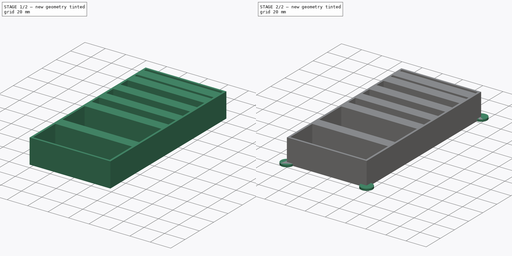
[diagram: build sequence overview — one tinted view per stage of 2, left to right]
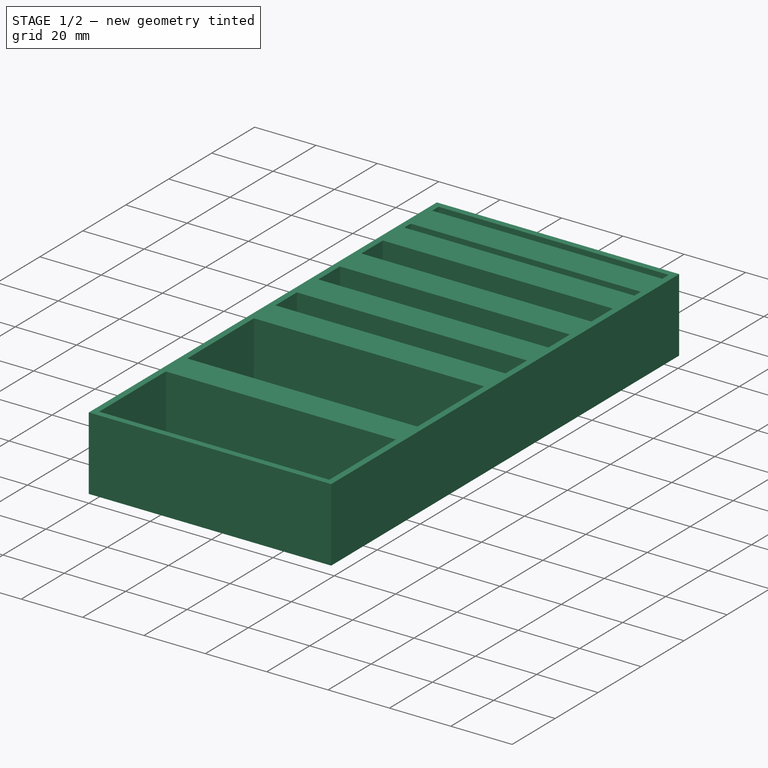
[diagram: stage 1 of 2 — iso view after this stage's code; geometry added in this stage tinted green]
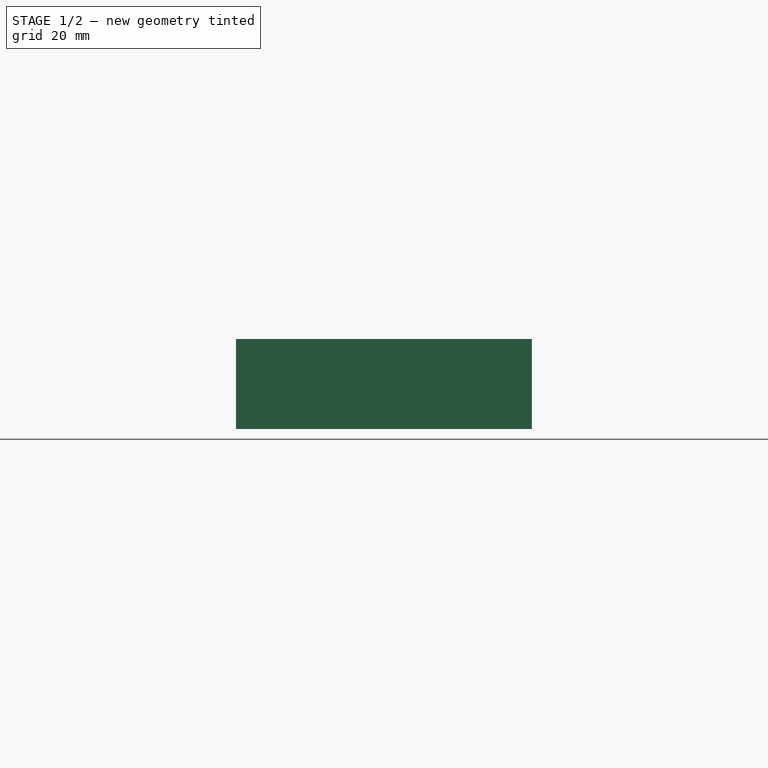
[diagram: stage 1 of 2 — front view after this stage's code; geometry added in this stage tinted green]
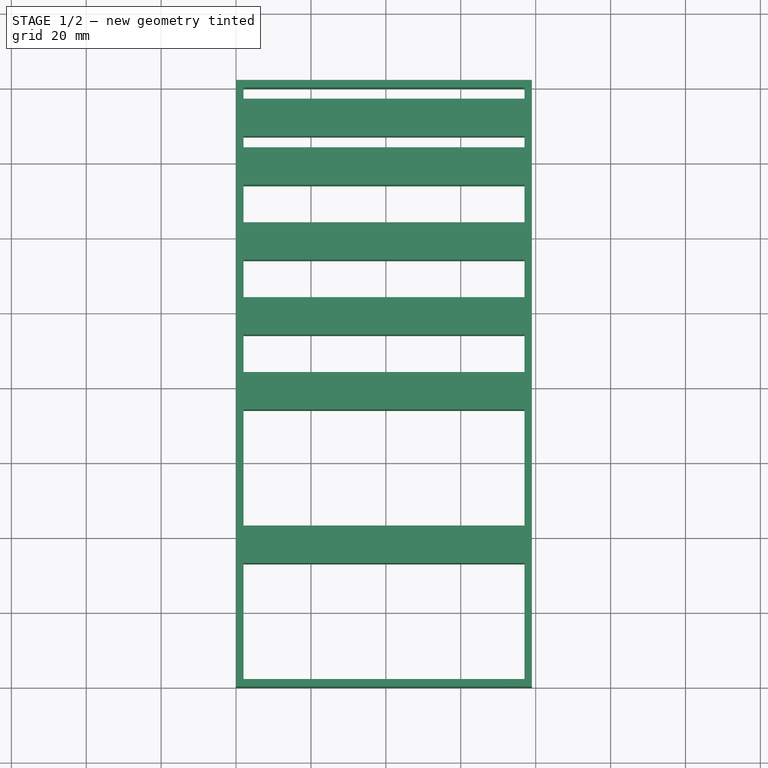
[diagram: stage 1 of 2 — top view after this stage's code; geometry added in this stage tinted green]
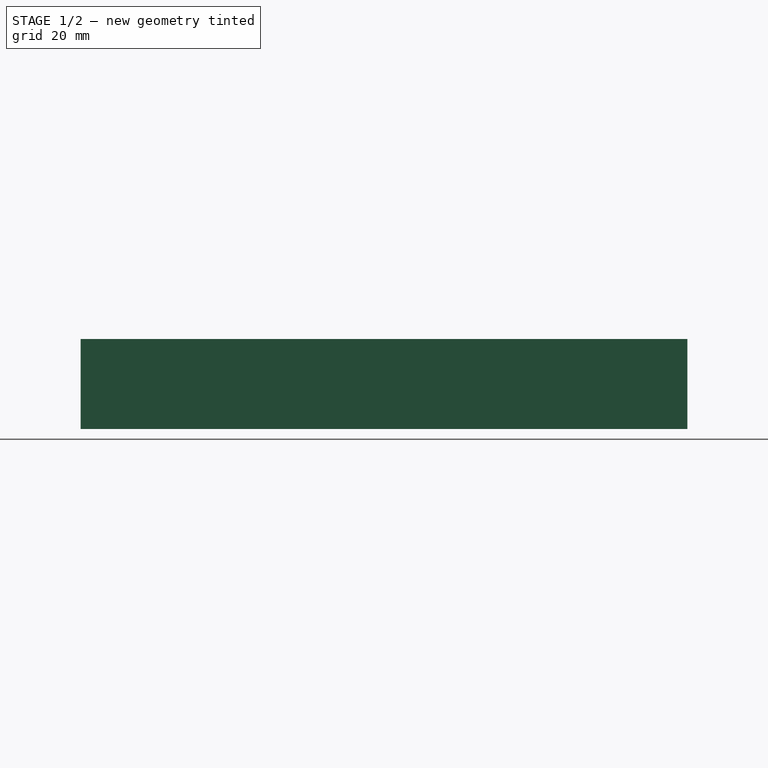
[diagram: stage 1 of 2 — right view after this stage's code; geometry added in this stage tinted green]
FCSTD DOCUMENT  (FreeCAD 0.18R4 (GitTag))
Label: caja_freecad
License: All rights reserved
LicenseURL: http://en.wikipedia.org/wiki/All_rights_reserved
objects: Sketcher::SketchObject×2, PartDesign::Pad×2, PartDesign::Body×2, Spreadsheet::Sheet×1, App::DocumentObjectGroup×1, App::Part×1
note: 8 computed .brp shape members not serialized (recipe doc carries the construction recipe); baked Part::Feature solids carry a one-line shape summary decoded from their .brp

FEATURE [PartDesign::Body] Body
  Group = -> [Pad]
  Origin = -> Origin
  Tip = -> Pad
FEATURE [Spreadsheet::Sheet] Spreadsheet  label="data"
  cells = A1=change only the values; B1= marked as:; C1=<<<; A3=ancho carta; B3(ancho_carta)=75; C3=<<<; A4=ancho pared; B4(ancho_pared)=2; C4=<<<; A5=largo interno caja; B5(largo_interno_caja)==+data.largo_interno_calc; C5=do not change this; D5=largo interno calc; E5(largo_interno_calc)==+data.sep_x_6 + data.espacios_x_7; A6=ancho separador; B6(ancho_separador)=10; C6=<<<; D6=6 separadores; E6(sep_x_6)==data.ancho_separador * 6; A7=ancho apoyo base; B7(ancho_apoyo_base)=10; C7=<<<; A9=espacio 1; B9(espacio_1)=3; C9=<<<; A10=espacio 2; B10(espacio_2)=3; C10=<<<; A11=espacio 3; B11(espacio_3)=10; C11=<<<; A12=espacio 4; B12(espacio_4)=10; C12=<<<; A13=espacio 5; B13(espacio_5)=10; C13=<<<; A14=espacio 6; B14(espacio_6)=31; C14=<<<; A15=espacio 7; B15(espacio_7)=31; C15=<<<; D15=suma espacios; E15(espacios_x_7)==data.espacio_1 + data.espacio_2 + data.espacio_3 + data.espacio_4 + data.espacio_5 + data.espacio_6 + data.espacio_7; A16=altura_carta; B16(altura_carta)=22; C16=<<<; A18=doble_ancho_pared; B18(doble_ancho_pared)==data.ancho_pared * 2; A19=radio_circulo_base; B19(radio_circulo)==+ancho_pared + 4
FEATURE [Sketcher::SketchObject] Sketch003  label="Sketch003_separadores"
  expr: Constraints[94] = +data.ancho_pared
  expr: Constraints[73] = +data.ancho_separador
  expr: Constraints[82] = +data.espacio_6
  expr: Constraints[81] = +data.ancho_separador
  expr: Constraints[80] = +data.espacio_5
  expr: Constraints[78] = +data.espacio_4
  expr: Constraints[76] = +data.espacio_3
  expr: Constraints[74] = +data.espacio_2
  expr: Constraints[55] = +data.ancho_carta
  expr: Constraints[75] = +data.ancho_separador
  expr: Constraints[9] = +data.largo_interno_caja + data.doble_ancho_pared
  expr: Constraints[93] = +data.ancho_separador
  expr: Constraints[54] = +data.ancho_pared
  expr: Constraints[79] = +data.ancho_separador
  expr: Constraints[53] = +data.ancho_pared
  expr: Constraints[10] = +data.ancho_carta + data.doble_ancho_pared
  expr: Constraints[77] = +data.ancho_separador
  expr: Constraints[72] = data.espacio_1
  sketch-geometry (32):
    g0: LineSegment StartX=0 StartY=0 StartZ=0 EndX=79 EndY=0 EndZ=0
    g1: LineSegment StartX=79 StartY=0 StartZ=0 EndX=79 EndY=162 EndZ=0
    g2: LineSegment StartX=79 StartY=162 StartZ=0 EndX=0 EndY=162 EndZ=0
    g3: LineSegment StartX=0 StartY=162 StartZ=0 EndX=0 EndY=0 EndZ=0
    g4: LineSegment StartX=2 StartY=160 StartZ=0 EndX=77 EndY=160 EndZ=0
    g5: LineSegment StartX=77 StartY=160 StartZ=0 EndX=77 EndY=157 EndZ=0
    g6: LineSegment StartX=77 StartY=157 StartZ=0 EndX=2 EndY=157 EndZ=0
    g7: LineSegment StartX=2 StartY=157 StartZ=0 EndX=2 EndY=160 EndZ=0
    g8: LineSegment StartX=2 StartY=147 StartZ=0 EndX=77 EndY=147 EndZ=0
    g9: LineSegment StartX=77 StartY=147 StartZ=0 EndX=77 EndY=144 EndZ=0
    g10: LineSegment StartX=77 StartY=144 StartZ=0 EndX=2 EndY=144 EndZ=0
    g11: LineSegment StartX=2 StartY=144 StartZ=0 EndX=2 EndY=147 EndZ=0
    g12: LineSegment StartX=2 StartY=134 StartZ=0 EndX=77 EndY=134 EndZ=0
    g13: LineSegment StartX=77 StartY=134 StartZ=0 EndX=77 EndY=124 EndZ=0
    g14: LineSegment StartX=77 StartY=124 StartZ=0 EndX=2 EndY=124 EndZ=0
    g15: LineSegment StartX=2 StartY=124 StartZ=0 EndX=2 EndY=134 EndZ=0
    g16: LineSegment StartX=2 StartY=114 StartZ=0 EndX=77 EndY=114 EndZ=0
    g17: LineSegment StartX=77 StartY=114 StartZ=0 EndX=77 EndY=104 EndZ=0
    g18: LineSegment StartX=77 StartY=104 StartZ=0 EndX=2 EndY=104 EndZ=0
    g19: LineSegment StartX=2 StartY=104 StartZ=0 EndX=2 EndY=114 EndZ=0
    g20: LineSegment StartX=2 StartY=94 StartZ=0 EndX=77 EndY=94 EndZ=0
    g21: LineSegment StartX=77 StartY=94 StartZ=0 EndX=77 EndY=84 EndZ=0
    g22: LineSegment StartX=77 StartY=84 StartZ=0 EndX=2 EndY=84 EndZ=0
    g23: LineSegment StartX=2 StartY=84 StartZ=0 EndX=2 EndY=94 EndZ=0
    g24: LineSegment StartX=2 StartY=74 StartZ=0 EndX=77 EndY=74 EndZ=0
    g25: LineSegment StartX=77 StartY=74 StartZ=0 EndX=77 EndY=43 EndZ=0
    g26: LineSegment StartX=77 StartY=43 StartZ=0 EndX=2 EndY=43 EndZ=0
    g27: LineSegment StartX=2 StartY=43 StartZ=0 EndX=2 EndY=74 EndZ=0
    g28: LineSegment StartX=2 StartY=33 StartZ=0 EndX=77 EndY=33 EndZ=0
    g29: LineSegment StartX=77 StartY=33 StartZ=0 EndX=77 EndY=2 EndZ=0
    g30: LineSegment StartX=77 StartY=2 StartZ=0 EndX=2 EndY=2 EndZ=0
    g31: LineSegment StartX=2 StartY=2 StartZ=0 EndX=2 EndY=33 EndZ=0
  constraints (95):
    c: Coincident(g0,g1)
    c: Coincident(g1,g2)
    c: Coincident(g2,g3)
    c: Coincident(g3,g0)
    c: Horizontal(g0)
    c: Horizontal(g2)
    c: Vertical(g1)
    c: Vertical(g3)
    c: Coincident(g0,g-1)
    c: DistanceY(g3,g3) = 162
    c: DistanceX(g0,g0) = 79
    c: Coincident(g4,g5)
    c: Coincident(g5,g6)
    c: Coincident(g6,g7)
    c: Coincident(g7,g4)
    c: Horizontal(g4)
    c: Horizontal(g6)
    c: Vertical(g5)
    c: Coincident(g8,g9)
    c: Coincident(g9,g10)
    c: Coincident(g10,g11)
    c: Coincident(g11,g8)
    c: Horizontal(g8)
    c: Horizontal(g10)
    c: Vertical(g9)
    c: Coincident(g12,g13)
    c: Coincident(g13,g14)
    c: Coincident(g14,g15)
    c: Coincident(g15,g12)
    c: Horizontal(g12)
    c: Horizontal(g14)
    c: Vertical(g13)
    c: Coincident(g16,g17)
    c: Coincident(g17,g18)
    c: Coincident(g18,g19)
    c: Coincident(g19,g16)
    c: Horizontal(g16)
    c: Horizontal(g18)
    c: Vertical(g17)
    c: Coincident(g20,g21)
    c: Coincident(g21,g22)
    c: Coincident(g22,g23)
    c: Coincident(g23,g20)
    c: Horizontal(g20)
    c: Horizontal(g22)
    c: Vertical(g21)
    c: Coincident(g24,g25)
    c: Coincident(g25,g26)
    c: Coincident(g26,g27)
    c: Coincident(g27,g24)
    c: Horizontal(g24)
    c: Horizontal(g26)
    c: Vertical(g25)
    c: DistanceX(g2,g4) = 2
    c: DistanceY(g4,g2) = 2
    c: DistanceX(g4,g4) = 75
    c: Vertical(g6,g8)
    c: Vertical(g10,g12)
    c: Vertical(g14,g16)
    c: Vertical(g18,g20)
    c: Vertical(g24,g22)
    c: Equal(g4,g6)
    c: Equal(g6,g8)
    c: Equal(g8,g10)
    c: Equal(g10,g12)
    c: Equal(g12,g14)
    c: Equal(g14,g16)
    c: Equal(g16,g18)
    c: Equal(g18,g20)
    c: Equal(g20,g22)
    c: Equal(g22,g24)
    c: Equal(g24,g26)
    c: DistanceY(g5,g4) = 3
    c: DistanceY(g8,g6) = 10
    c: DistanceY(g9,g8) = 3
    c: DistanceY(g12,g10) = 10
    c: DistanceY(g13,g12) = 10
    c: DistanceY(g16,g14) = 10
    c: DistanceY(g17,g16) = 10
    c: DistanceY(g20,g18) = 10
    c: DistanceY(g21,g20) = 10
    c: DistanceY(g24,g22) = 10
    c: DistanceY(g25,g24) = 31
    c: Coincident(g28,g29)
    c: Coincident(g29,g30)
    c: Coincident(g30,g31)
    c: Coincident(g31,g28)
    c: Horizontal(g28)
    c: Horizontal(g30)
    c: Vertical(g29)
    c: Vertical(g28,g26)
    c: Equal(g4,g28)
    c: Equal(g28,g30)
    c: DistanceY(g28,g26) = 10
    c: DistanceY(g0,g29) = 2
FEATURE [App::DocumentObjectGroup] Group  label="sketches"
  Group = -> [Sketch,Sketch003]
FEATURE [PartDesign::Pad] Pad001
  Length = 24
  Length2 = 100
  Profile = -> Sketch003
  Type = 0
  expr: Length = +data.altura_carta + data.ancho_pared
FEATURE [PartDesign::Body] Body002
  Group = -> [Pad001]
  Origin = -> Origin002
  Tip = -> Pad001
FEATURE [App::Part] Part
  Group = -> [Body002,Body]
  Origin = -> Origin003
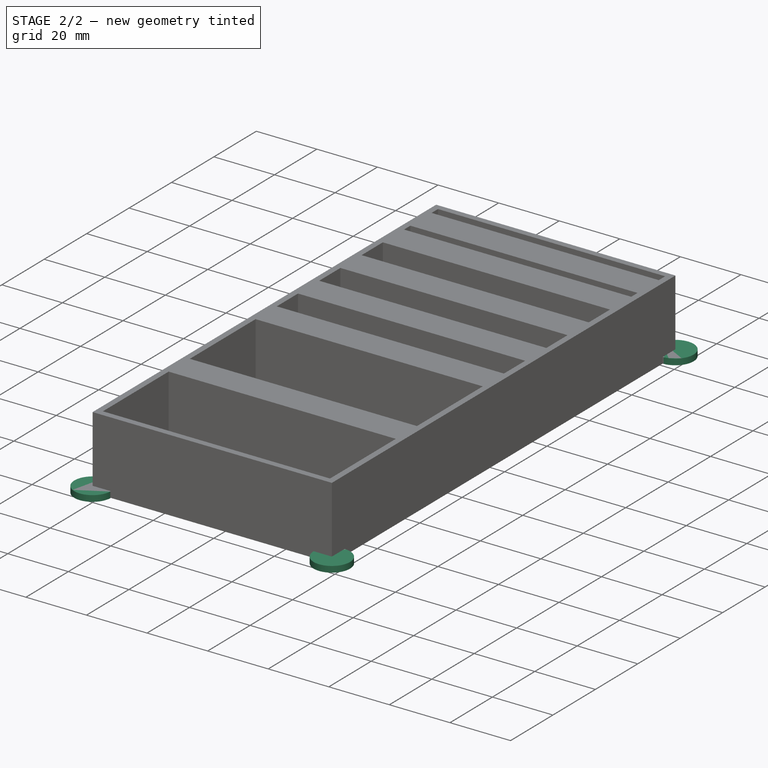
[diagram: stage 2 of 2 — iso view after this stage's code; geometry added in this stage tinted green]
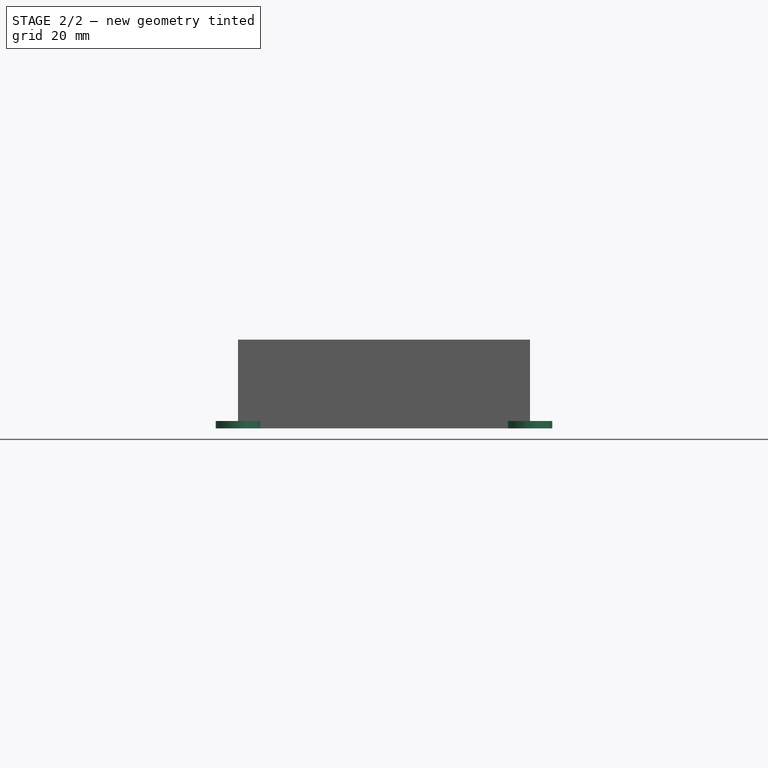
[diagram: stage 2 of 2 — front view after this stage's code; geometry added in this stage tinted green]
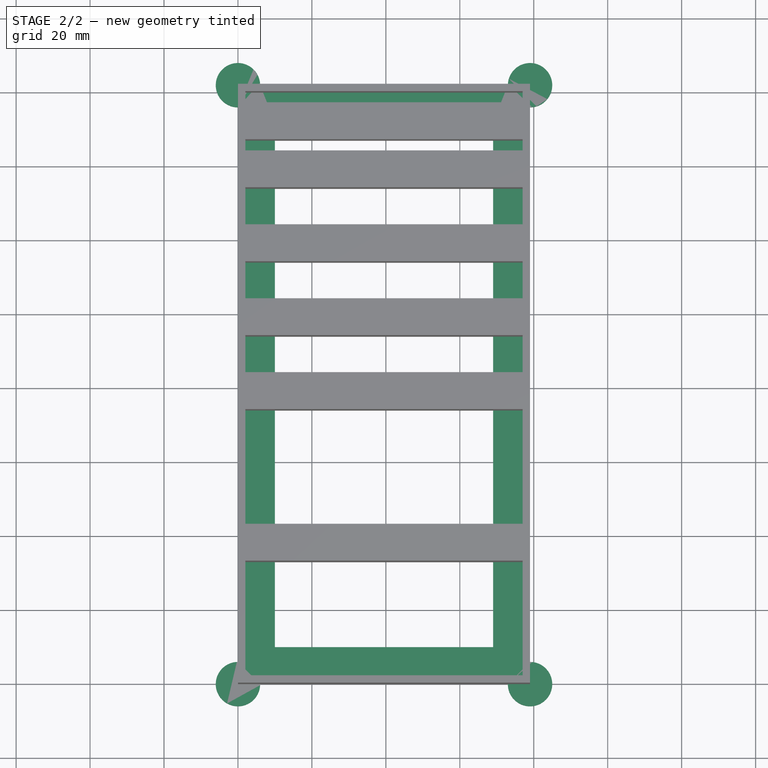
[diagram: stage 2 of 2 — top view after this stage's code; geometry added in this stage tinted green]
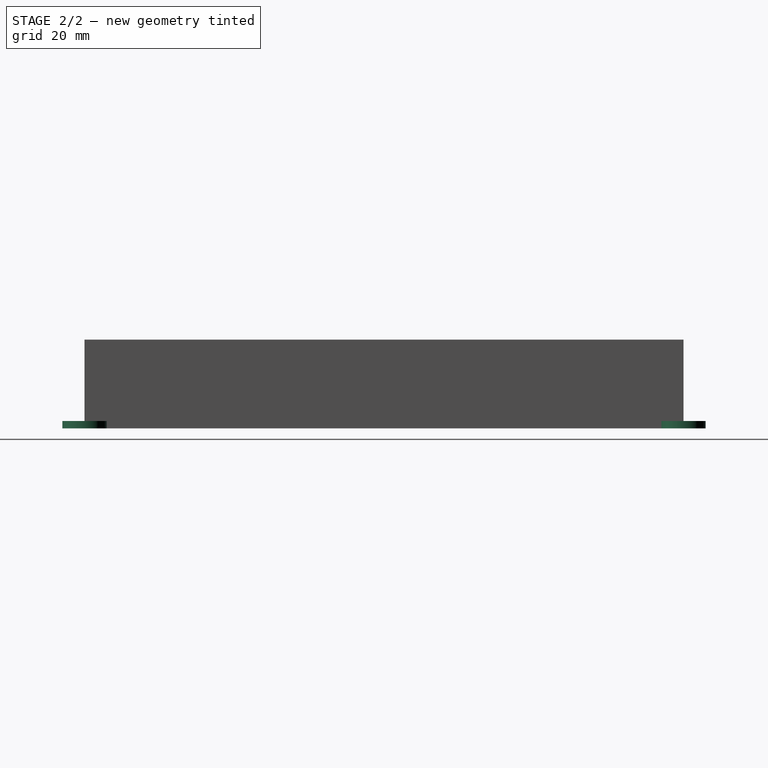
[diagram: stage 2 of 2 — right view after this stage's code; geometry added in this stage tinted green]
FEATURE [Sketcher::SketchObject] Sketch  label="Sketch__base_caja"
  expr: Constraints[38] = +data.ancho_apoyo_base
  expr: Constraints[14] = +data.ancho_apoyo_base
  expr: Constraints[36] = +data.ancho_apoyo_base
  expr: Constraints[35] = +data.ancho_apoyo_base
  expr: Constraints[8] = +data.radio_circulo
  expr: Constraints[13] = +data.largo_interno_caja + data.doble_ancho_pared
  expr: Constraints[12] = +data.ancho_carta + data.doble_ancho_pared
  sketch-geometry (12):
    g0: ArcOfCircle CenterX=0 CenterY=162 CenterZ=0 NormalX=0 NormalY=0 NormalZ=1 AngleXU=0 Radius=6 StartAngle=0 EndAngle=4.71239
    g1: ArcOfCircle CenterX=79 CenterY=162 CenterZ=0 NormalX=0 NormalY=0 NormalZ=1 AngleXU=0 Radius=6 StartAngle=4.71239 EndAngle=9.42478
    g2: ArcOfCircle CenterX=0 CenterY=0 CenterZ=0 NormalX=0 NormalY=0 NormalZ=1 AngleXU=0 Radius=6 StartAngle=1.5708 EndAngle=6.28319
    g3: ArcOfCircle CenterX=79 CenterY=0 CenterZ=0 NormalX=0 NormalY=0 NormalZ=1 AngleXU=0 Radius=6 StartAngle=3.14159 EndAngle=7.85398
    g4: LineSegment StartX=6 StartY=162 StartZ=0 EndX=73 EndY=162 EndZ=0
    g5: LineSegment StartX=79 StartY=156 StartZ=0 EndX=79 EndY=6 EndZ=0
    g6: LineSegment StartX=73 StartY=0 StartZ=0 EndX=6 EndY=0 EndZ=0
    g7: LineSegment StartX=0 StartY=6 StartZ=0 EndX=0 EndY=156 EndZ=0
    g8: LineSegment StartX=10 StartY=152 StartZ=0 EndX=69 EndY=152 EndZ=0
    g9: LineSegment StartX=69 StartY=152 StartZ=0 EndX=69 EndY=10 EndZ=0
    g10: LineSegment StartX=69 StartY=10 StartZ=0 EndX=10 EndY=10 EndZ=0
    g11: LineSegment StartX=10 StartY=10 StartZ=0 EndX=10 EndY=152 EndZ=0
  constraints (39):
    c: Horizontal(g4)
    c: Horizontal(g8)
    c: Horizontal(g10)
    c: Horizontal(g6)
    c: Vertical(g7)
    c: Vertical(g11)
    c: Vertical(g9)
    c: Vertical(g5)
    c: Radius(g0) = 6
    c: Equal(g0,g1)
    c: Equal(g0,g3)
    c: Equal(g0,g2)
    c: DistanceX(g0,g1) = 79
    c: DistanceY(g3,g1) = 162
    c: DistanceY(g8,g0) = 10
    c: Vertical(g2,g2)
    c: Vertical(g0,g0)
    c: Vertical(g1,g1)
    c: Vertical(g3,g3)
    c: Coincident(g2,g7)
    c: Coincident(g0,g7)
    c: Coincident(g2,g6)
    c: Coincident(g10,g11)
    c: Coincident(g8,g11)
    c: Coincident(g9,g10)
    c: Coincident(g8,g9)
    c: Coincident(g3,g6)
    c: Coincident(g1,g4)
    c: Coincident(g3,g5)
    c: Coincident(g1,g5)
    c: Perpendicular(g0,g4)
    c: Perpendicular(g1,g4)
    c: Perpendicular(g2,g6)
    c: Perpendicular(g3,g6)
    c: Coincident(g0,g4)
    c: DistanceX(g0,g8) = 10
    c: DistanceX(g8,g1) = 10
    c: Coincident(g2,g-1)
    c: DistanceY(g2,g10) = 10
FEATURE [PartDesign::Pad] Pad
  Length = 2
  Length2 = 100
  Profile = -> Sketch
  Type = 0
  expr: Length = data.ancho_pared
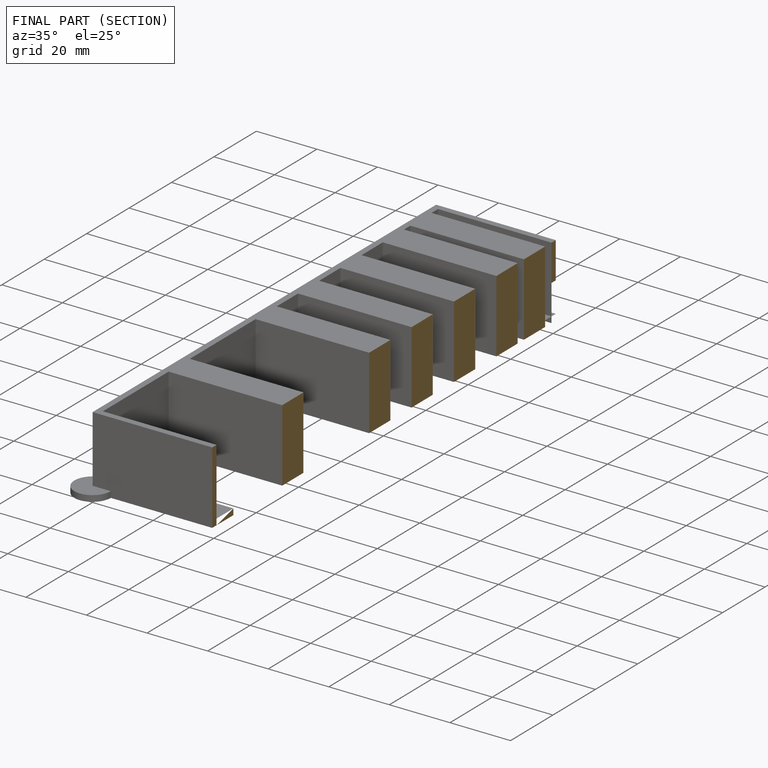
[diagram: finished part — half-section view (interior)]
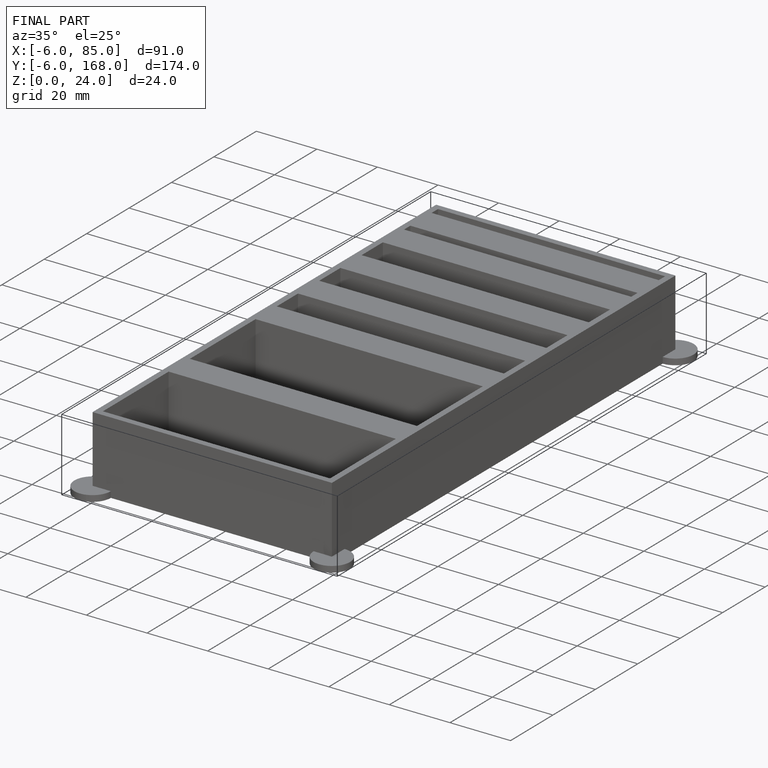
[diagram: finished part — iso view with bounding-box wireframe]
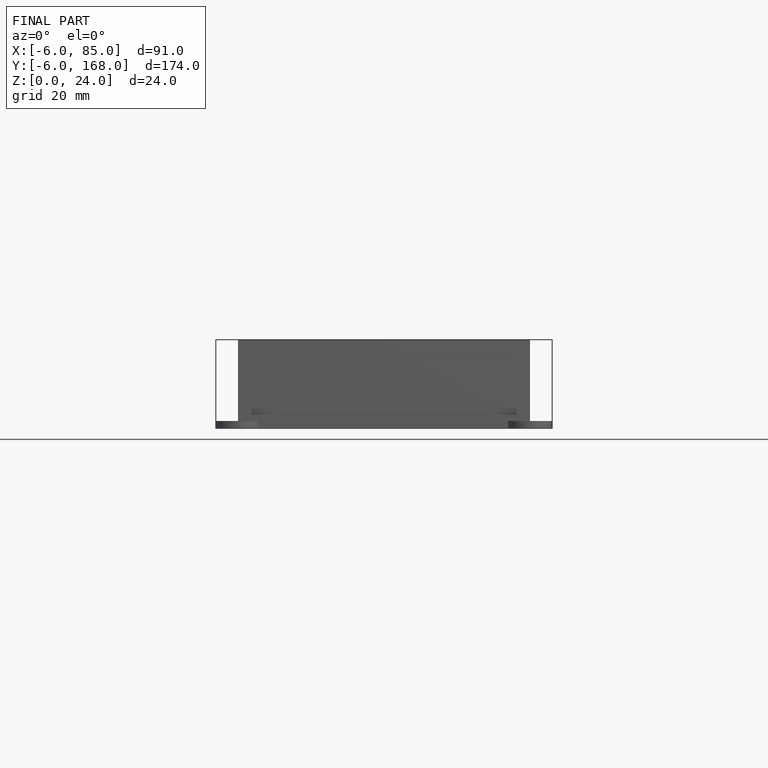
[diagram: finished part — front view with bounding-box wireframe]
